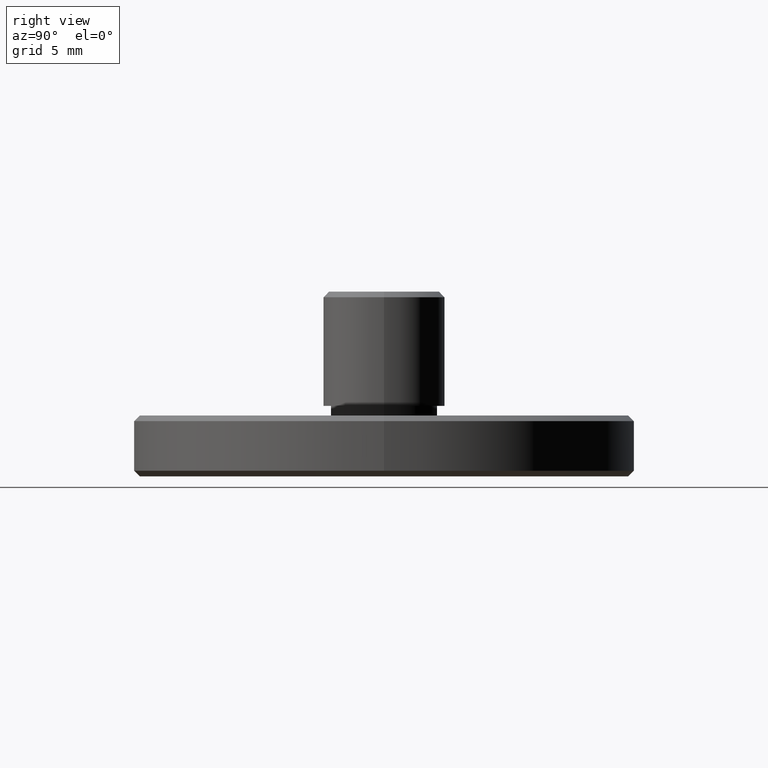
[diagram: clean part render]
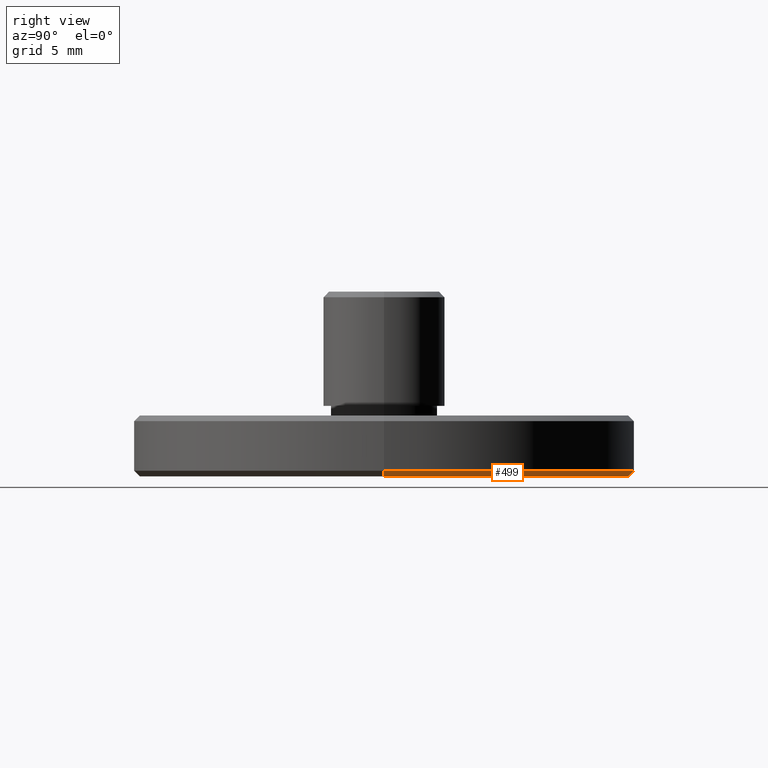
[diagram: same view with one face highlighted and labeled with its STEP entity id]
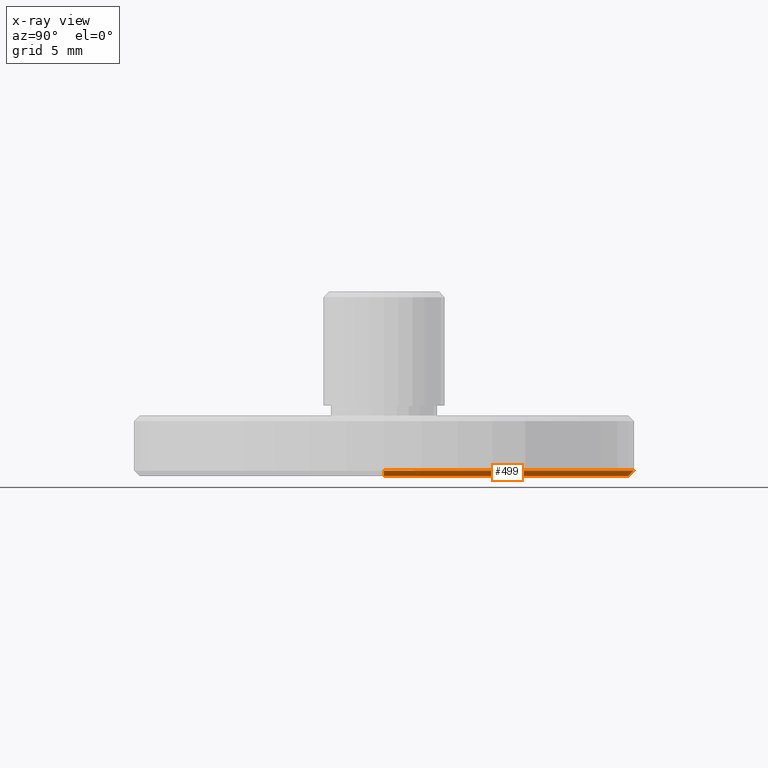
[diagram: x-ray of the same camera — body ghosted, the highlighted face saturated]
A machine part, right view. The second image highlights one B-rep face of the part: STEP entity #499.
The next image is the same camera in x-ray: the body ghosted, the highlighted face saturated — about 0% of this face is hidden behind the body in this view.
In plain terms, the highlighted conical surface has half-angle 45 deg.
Its self-contained STEP definition (entity closure, byte-faithful):
#11 = CARTESIAN_POINT ( 'NONE',  ( -12.85000000000000142, 1.573671136904349257E-15, 0.000000000000000000 ) ) ;
#25 = DIRECTION ( 'NONE',  ( -0.7071067811865453523, 8.659560562354906974E-17, 0.7071067811865496822 ) ) ;
#29 = CARTESIAN_POINT ( 'NONE',  ( 12.85000000000000142, 0.000000000000000000, 0.000000000000000000 ) ) ;
#55 = EDGE_CURVE ( 'NONE', #319, #141, #815, .T. ) ;
#141 = VERTEX_POINT ( 'NONE', #543 ) ;
#168 = LINE ( 'NONE', #856, #515 ) ;
#189 = DIRECTION ( 'NONE',  ( 0.000000000000000000, 0.000000000000000000, 1.000000000000000000 ) ) ;
#251 = AXIS2_PLACEMENT_3D ( 'NONE', #271, #189, #896 ) ;
#271 = CARTESIAN_POINT ( 'NONE',  ( 0.000000000000000000, 0.000000000000000000, 0.000000000000000000 ) ) ;
#281 = ORIENTED_EDGE ( 'NONE', *, *, #55, .T. ) ;
#319 = VERTEX_POINT ( 'NONE', #536 ) ;
#371 = LINE ( 'NONE', #11, #881 ) ;
#402 = DIRECTION ( 'NONE',  ( -1.000000000000000000, 0.000000000000000000, 8.244883440954406336E-18 ) ) ;
#471 = DIRECTION ( 'NONE',  ( -0.000000000000000000, -0.000000000000000000, -1.000000000000000000 ) ) ;
#477 = EDGE_CURVE ( 'NONE', #706, #670, #716, .T. ) ;
#489 = ORIENTED_EDGE ( 'NONE', *, *, #477, .F. ) ;
#499 = ADVANCED_FACE ( 'NONE', ( #608 ), #791, .T. ) ;
#515 = VECTOR ( 'NONE', #721, 1000.000000000000000 ) ;
#535 = ORIENTED_EDGE ( 'NONE', *, *, #619, .F. ) ;
#536 = CARTESIAN_POINT ( 'NONE',  ( -13.15000000000000036, 1.610410540878769525E-15, 0.2999999999999999334 ) ) ;
#543 = CARTESIAN_POINT ( 'NONE',  ( 13.15000000000000036, 0.000000000000000000, 0.2999999999999999334 ) ) ;
#608 = FACE_OUTER_BOUND ( 'NONE', #768, .T. ) ;
#619 = EDGE_CURVE ( 'NONE', #670, #141, #168, .T. ) ;
#623 = EDGE_CURVE ( 'NONE', #706, #319, #371, .T. ) ;
#654 = AXIS2_PLACEMENT_3D ( 'NONE', #904, #693, #402 ) ;
#670 = VERTEX_POINT ( 'NONE', #29 ) ;
#693 = DIRECTION ( 'NONE',  ( 0.000000000000000000, 0.000000000000000000, -1.000000000000000000 ) ) ;
#706 = VERTEX_POINT ( 'NONE', #877 ) ;
#716 = CIRCLE ( 'NONE', #800, 12.85000000000000142 ) ;
#721 = DIRECTION ( 'NONE',  ( 0.7071067811865453523, 0.000000000000000000, 0.7071067811865496822 ) ) ;
#751 = DIRECTION ( 'NONE',  ( 1.000000000000000000, 0.000000000000000000, 0.000000000000000000 ) ) ;
#768 = EDGE_LOOP ( 'NONE', ( #489, #879, #281, #535 ) ) ;
#791 = CONICAL_SURFACE ( 'NONE', #251, 12.85000000000000142, 0.7853981633974452814 ) ;
#800 = AXIS2_PLACEMENT_3D ( 'NONE', #826, #471, #751 ) ;
#815 = CIRCLE ( 'NONE', #654, 13.15000000000000036 ) ;
#826 = CARTESIAN_POINT ( 'NONE',  ( 0.000000000000000000, 0.000000000000000000, 0.000000000000000000 ) ) ;
#856 = CARTESIAN_POINT ( 'NONE',  ( 12.85000000000000142, 0.000000000000000000, 0.000000000000000000 ) ) ;
#877 = CARTESIAN_POINT ( 'NONE',  ( -12.85000000000000142, 1.592040838891559293E-15, 0.000000000000000000 ) ) ;
#879 = ORIENTED_EDGE ( 'NONE', *, *, #623, .T. ) ;
#881 = VECTOR ( 'NONE', #25, 1000.000000000000000 ) ;
#896 = DIRECTION ( 'NONE',  ( 1.000000000000000000, 0.000000000000000000, 0.000000000000000000 ) ) ;
#904 = CARTESIAN_POINT ( 'NONE',  ( 0.000000000000000000, 0.000000000000000000, 0.2999999999999999334 ) ) ;